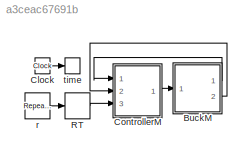
MODEL slx_a3ceac67691b
KIND model
CONFIG AbsTol = auto
CONFIG FixedStep = t_step
CONFIG MaxStep = auto
CONFIG MinStep = auto
CONFIG RelTol = 1e-3
CONFIG SampleTimeConstraint = Unconstrained
CONFIG Solver = ode4
CONFIG SolverMode = Auto
CONFIG SolverName = ode4
CONFIG StartTime = 0.0
CONFIG StopTime = tf
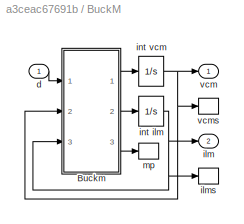
BLOCK [SubSystem] BuckM
  Ports = [1, 2]
  RequestExecContextInheritance = off
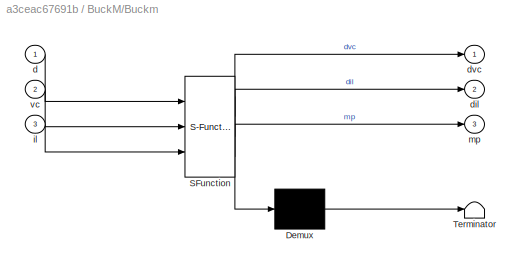
BLOCK [SubSystem] BuckM/Buckm
  ErrorFcn = Stateflow.Translate.translate
  PermitHierarchicalResolution = ExplicitOnly
  Ports = [3, 3]
  RequestExecContextInheritance = off
  SFBlockType = MATLAB Function
  TreatAsAtomicUnit = on
BLOCK [Demux] BuckM/Buckm/ Demux 
  Outputs = 1
  Ports = [1, 1]
BLOCK [S-Function] BuckM/Buckm/ SFunction 
  EnableBusSupport = on
  FunctionName = sf_sfun
  Parameters = Cpm,DBm,Lm,Rm,Ts,Vim
  PortCounts = [3 4]
  Ports = [3, 4]
  Tag = Stateflow S-Function BulkMod_SMIA_SMIA_Sim 3
BLOCK [Terminator] BuckM/Buckm/ Terminator 
BLOCK [Inport] BuckM/Buckm/d
  IconDisplay = Port number
BLOCK [Outport] BuckM/Buckm/dil
  IconDisplay = Port number
  Port = 2
BLOCK [Outport] BuckM/Buckm/dvc
  IconDisplay = Port number
BLOCK [Inport] BuckM/Buckm/il
  IconDisplay = Port number
  Port = 3
BLOCK [Outport] BuckM/Buckm/mp
  IconDisplay = Port number
  Port = 3
BLOCK [Inport] BuckM/Buckm/vc
  IconDisplay = Port number
  Port = 2
BLOCK [Inport] BuckM/d
  IconDisplay = Port number
BLOCK [Outport] BuckM/ilm
  IconDisplay = Port number
  Port = 2
BLOCK [ToWorkspace] BuckM/ilms
  FixptAsFi = on
  MaxDataPoints = inf
  Ports = [1]
  SampleTime = -1
  Save2DSignal = 3-D array (concatenate along third dimension)
  VariableName = ilm
BLOCK [Integrator] BuckM/int ilm
  LimitOutput = on
  LowerSaturationLimit = 0
  Ports = [1, 1]
BLOCK [Integrator] BuckM/int vcm
  LimitOutput = on
  LowerSaturationLimit = 0
  Ports = [1, 1]
BLOCK [ToWorkspace] BuckM/mp
  FixptAsFi = on
  MaxDataPoints = inf
  Ports = [1]
  SampleTime = -1
  Save2DSignal = 3-D array (concatenate along third dimension)
  VariableName = mp
BLOCK [Outport] BuckM/vcm
  IconDisplay = Port number
BLOCK [ToWorkspace] BuckM/vcms
  FixptAsFi = on
  MaxDataPoints = inf
  Ports = [1]
  SampleTime = -1
  Save2DSignal = 3-D array (concatenate along third dimension)
  VariableName = vcm
BLOCK [Clock] Clock
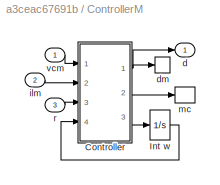
BLOCK [SubSystem] ControllerM
  Ports = [3, 1]
  RequestExecContextInheritance = off
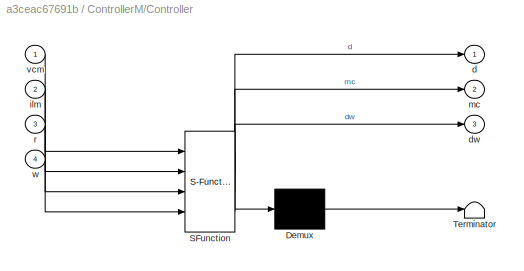
BLOCK [SubSystem] ControllerM/Controller
  ErrorFcn = Stateflow.Translate.translate
  PermitHierarchicalResolution = ExplicitOnly
  Ports = [4, 3]
  RequestExecContextInheritance = off
  SFBlockType = MATLAB Function
  TreatAsAtomicUnit = on
BLOCK [Demux] ControllerM/Controller/ Demux 
  Outputs = 1
  Ports = [1, 1]
BLOCK [S-Function] ControllerM/Controller/ SFunction 
  EnableBusSupport = on
  FunctionName = sf_sfun
  Parameters = Cp,DBm,Ks,L,R,Ts,Vi,lambda,phi
  PortCounts = [4 4]
  Ports = [4, 4]
  Tag = Stateflow S-Function BulkMod_SMIA_SMIA_Sim 4
BLOCK [Terminator] ControllerM/Controller/ Terminator 
BLOCK [Outport] ControllerM/Controller/d
  IconDisplay = Port number
BLOCK [Outport] ControllerM/Controller/dw
  IconDisplay = Port number
  Port = 3
BLOCK [Inport] ControllerM/Controller/ilm
  IconDisplay = Port number
  Port = 2
BLOCK [Outport] ControllerM/Controller/mc
  IconDisplay = Port number
  Port = 2
BLOCK [Inport] ControllerM/Controller/r
  IconDisplay = Port number
  Port = 3
BLOCK [Inport] ControllerM/Controller/vcm
  IconDisplay = Port number
BLOCK [Inport] ControllerM/Controller/w
  IconDisplay = Port number
  Port = 4
BLOCK [Integrator] ControllerM/Int w
  Ports = [1, 1]
BLOCK [Outport] ControllerM/d
  IconDisplay = Port number
BLOCK [ToWorkspace] ControllerM/dm
  FixptAsFi = on
  MaxDataPoints = inf
  Ports = [1]
  SampleTime = -1
  Save2DSignal = 3-D array (concatenate along third dimension)
  VariableName = d
BLOCK [Inport] ControllerM/ilm
  IconDisplay = Port number
  Port = 2
BLOCK [ToWorkspace] ControllerM/mc
  FixptAsFi = on
  MaxDataPoints = inf
  Ports = [1]
  SampleTime = -1
  Save2DSignal = 3-D array (concatenate along third dimension)
  VariableName = mc
BLOCK [Inport] ControllerM/r
  IconDisplay = Port number
  Port = 3
BLOCK [Inport] ControllerM/vcm
  IconDisplay = Port number
BLOCK [RateTransition] RT
  Deterministic = off
  Integrity = off
  X0 = 2
BLOCK [Reference] r  REF=simulink/Sources/Repeating
Sequence
Stair
  ConRadixGroup = Best Precision: Vector-wise
  LockScale = off
  OutDataType = fixdt(0,8)
  OutDataTypeStr = double
  OutMax = []
  OutMin = []
  OutScaling = 2^-12
  OutValues = [2, 26, 14].'
  OutputDataTypeScalingMode = double
  Ports = [0, 1]
  SourceBlock = simulink/Sources/Repeating\nSequence\nStair
  SourceType = Repeating Sequence Stair
  tsamp = Tr
BLOCK [ToWorkspace] time
  FixptAsFi = on
  MaxDataPoints = inf
  Ports = [1]
  SampleTime = -1
  Save2DSignal = 3-D array (concatenate along third dimension)
  VariableName = t
LINE BuckM/Buckm:1 -> BuckM/int vcm:1
LINE BuckM/Buckm:2 -> BuckM/int ilm:1
LINE BuckM/Buckm:3 -> BuckM/mp:1
LINE BuckM/d:1 -> BuckM/Buckm:1
NET BuckM/int ilm:1 -> BuckM/Buckm:3, BuckM/ilm:1, BuckM/ilms:1
NET BuckM/int vcm:1 -> BuckM/Buckm:2, BuckM/vcm:1, BuckM/vcms:1
LINE BuckM:1 -> ControllerM:1
LINE BuckM:2 -> ControllerM:2
LINE Clock:1 -> time:1
NET ControllerM/Controller:1 -> ControllerM/d:1, ControllerM/dm:1
LINE ControllerM/Controller:2 -> ControllerM/mc:1
LINE ControllerM/Controller:3 -> ControllerM/Int w:1
LINE ControllerM/Int w:1 -> ControllerM/Controller:4
LINE ControllerM/ilm:1 -> ControllerM/Controller:2
LINE ControllerM/r:1 -> ControllerM/Controller:3
LINE ControllerM/vcm:1 -> ControllerM/Controller:1
LINE ControllerM:1 -> BuckM:1
LINE RT:1 -> ControllerM:3
LINE r:1 -> RT:1
note: NET lines group one-source signal fan-out (src -> all destinations, sorted); 1:1 wires keep LINE
CHART BuckM/Buckm states=1 transitions=1
  STATE_LABEL 'eML_blk_kernel()'
  STATE_LABEL 'SCRIPT:\nfunction [dvc, dil, mp] = fcn(d, vc, il, Vim, Rm, Lm, Cpm, Ts, DBm)\ndvc = (il - vc/Rm) / Cpm;\nilb = DBm * (Vim - vc);\nif il < ilb % Nonlinear\n    dil = Vim*d/Lm - 2*il*vc/(d*Ts*(Vim-vc));\n    mp = 0;\nelse % Linear\n    dil = Vim*d/Lm - vc/Lm;\n    mp = 1;\nend'
CHART ControllerM/Controller states=1 transitions=1
  STATE_LABEL 'eML_blk_kernel()'
  STATE_LABEL 'SCRIPT:\nfunction [d, mc, dw] = fcn(vcm, ilm, r, w, R, Cp, L, Vi, Ts, DBm, lambda, phi, Ks)\nilb = DBm * (Vi - vcm); % Conduction Mode Boundary\ndvcm = (ilm - vcm/R) / Cp;\ndw = vcm - r;\n% Sliding Surface\ns = dvcm + 2 * lambda * dw + lambda^2 * w;\n% Slinding-Mode Integral Action Controller\nsat_s = min(1, max(-1, s/phi));\nv = - 2 * lambda * dvcm - lambda^2 * dw - Ks * sat_s;\nif ilm < ilb %%%   NONLINEA...<+410ch>'
